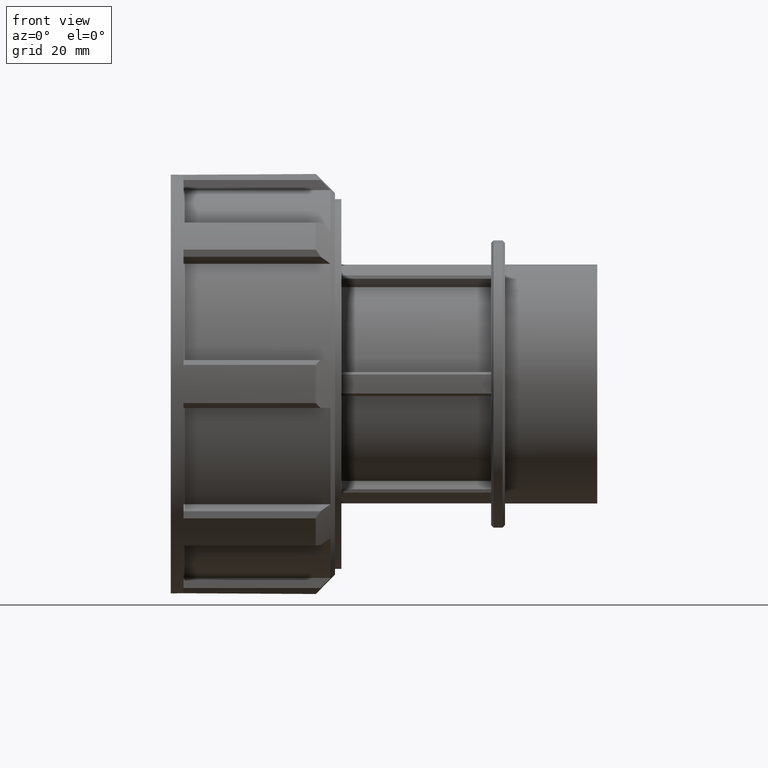
[diagram: clean part render]
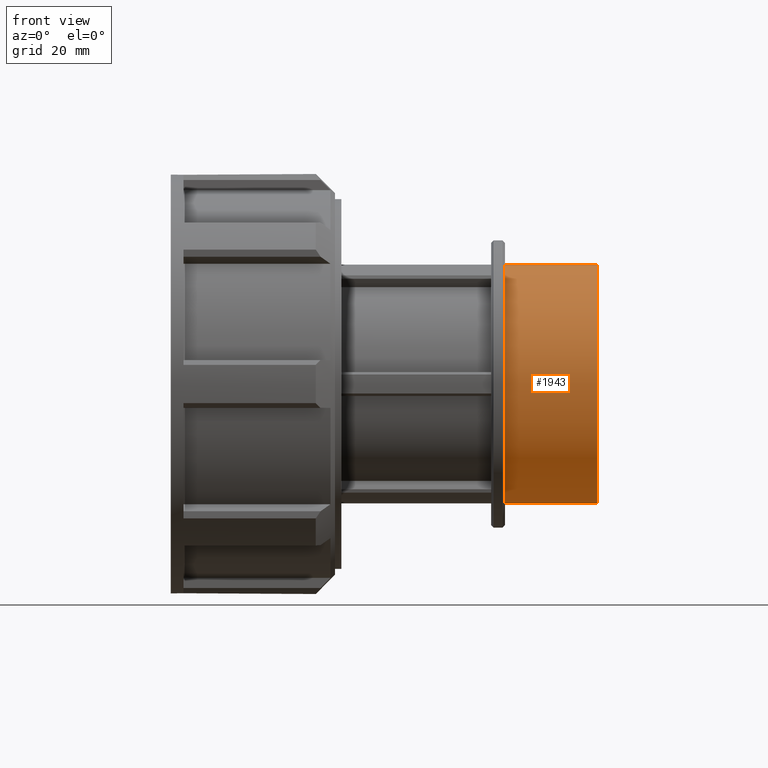
[diagram: same view with one face highlighted and labeled with its STEP entity id]
A machine part, front view. The second image highlights one B-rep face of the part: STEP entity #1943.
In plain terms, the highlighted cylindrical surface (bore or boss wall) has radius 37.592 mm, axis along (1, 0, 0).
Its self-contained STEP definition (entity closure, byte-faithful):
#73=FACE_BOUND('',#420,.T.);
#102=CIRCLE('',#2009,37.592);
#152=CIRCLE('',#2131,37.592);
#182=CYLINDRICAL_SURFACE('',#2130,37.592);
#289=FACE_OUTER_BOUND('',#419,.T.);
#419=EDGE_LOOP('',(#1759));
#420=EDGE_LOOP('',(#1760));
#823=VERTEX_POINT('',#2882);
#940=VERTEX_POINT('',#3305);
#1044=EDGE_CURVE('',#823,#823,#102,.T.);
#1214=EDGE_CURVE('',#940,#940,#152,.T.);
#1759=ORIENTED_EDGE('',*,*,#1214,.F.);
#1760=ORIENTED_EDGE('',*,*,#1044,.T.);
#1943=ADVANCED_FACE('',(#289,#73),#182,.T.);
#2009=AXIS2_PLACEMENT_3D('',#2883,#2335,#2336);
#2130=AXIS2_PLACEMENT_3D('',#3304,#2665,#2666);
#2131=AXIS2_PLACEMENT_3D('',#3306,#2667,#2668);
#2335=DIRECTION('center_axis',(1.,0.,0.));
#2336=DIRECTION('ref_axis',(0.,0.,-1.));
#2665=DIRECTION('center_axis',(1.,0.,0.));
#2666=DIRECTION('ref_axis',(0.,1.,0.));
#2667=DIRECTION('center_axis',(1.,0.,0.));
#2668=DIRECTION('ref_axis',(0.,0.,-1.));
#2882=CARTESIAN_POINT('',(105.,37.592,0.));
#2883=CARTESIAN_POINT('Origin',(105.,0.,0.));
#3304=CARTESIAN_POINT('Origin',(119.5,0.,0.));
#3305=CARTESIAN_POINT('',(134.,37.592,0.));
#3306=CARTESIAN_POINT('Origin',(134.,0.,0.));